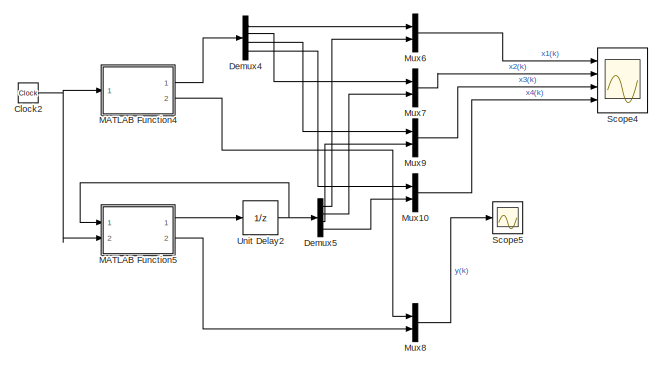
[diagram: root canvas - part 1/2, right side, full height]
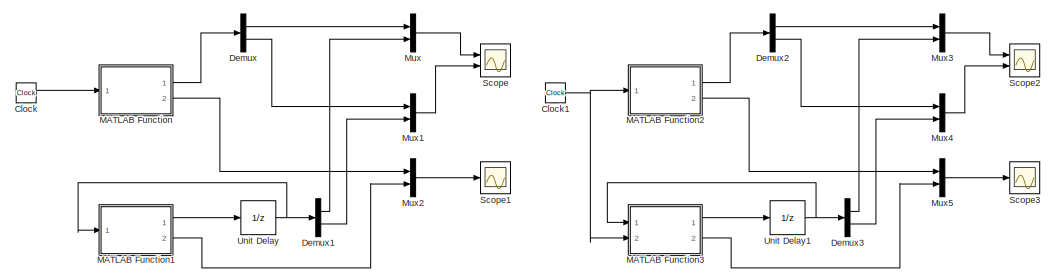
[diagram: root canvas - part 2/2, middle left region]
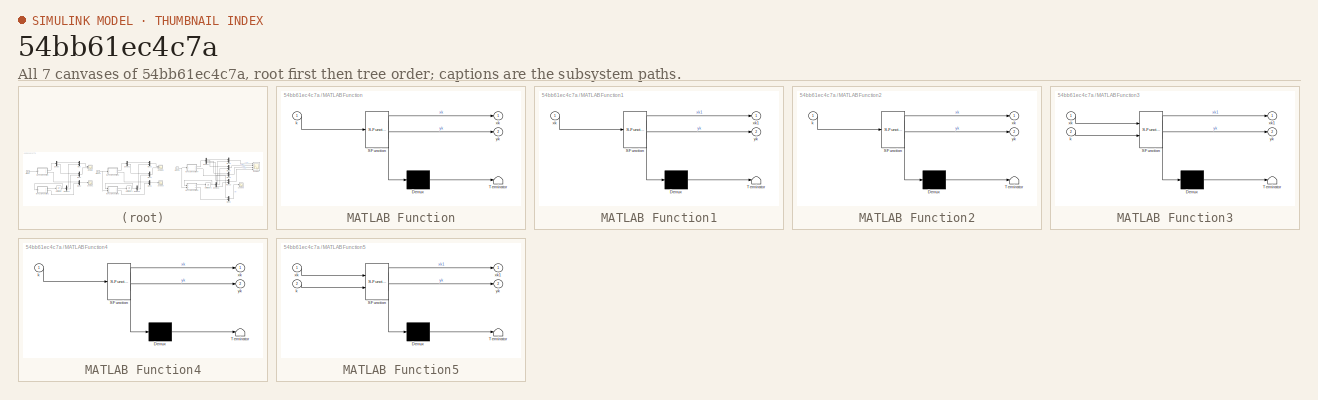
[diagram: thumbnail index - all 7 canvases of the model, root first then tree order]
MODEL slx_54bb61ec4c7a
KIND model
CONFIG AbsTol = auto
CONFIG FixedStep = 1
CONFIG MaxStep = auto
CONFIG MinStep = auto
CONFIG RelTol = 1e-3
CONFIG SampleTimeConstraint = Unconstrained
CONFIG Solver = FixedStepDiscrete
CONFIG SolverMode = Auto
CONFIG SolverName = FixedStepDiscrete
CONFIG StartTime = 0.0
CONFIG StopTime = 10.0
BLOCK [Clock] Clock
BLOCK [Clock] Clock1
BLOCK [Clock] Clock2
BLOCK [Demux] Demux
  DisplayOption = bar
  Outputs = 2
  Ports = [1, 2]
BLOCK [Demux] Demux1
  DisplayOption = bar
  Outputs = 2
  Ports = [1, 2]
BLOCK [Demux] Demux2
  DisplayOption = bar
  Outputs = 2
  Ports = [1, 2]
BLOCK [Demux] Demux3
  DisplayOption = bar
  Outputs = 2
  Ports = [1, 2]
BLOCK [Demux] Demux4
  DisplayOption = bar
  Ports = [1, 4]
BLOCK [Demux] Demux5
  DisplayOption = bar
  Ports = [1, 4]
BLOCK [SubSystem] MATLAB Function
  ErrorFcn = Stateflow.Translate.translate
  PermitHierarchicalResolution = ExplicitOnly
  Ports = [1, 2]
  RequestExecContextInheritance = off
  SFBlockType = MATLAB Function
  TreatAsAtomicUnit = on
BLOCK [Demux] MATLAB Function/ Demux 
  Outputs = 1
  Ports = [1, 1]
BLOCK [S-Function] MATLAB Function/ SFunction 
  EnableBusSupport = on
  FunctionName = sf_sfun
  PortCounts = [1 3]
  Ports = [1, 3]
  Tag = Stateflow S-Function untitled 2
BLOCK [Terminator] MATLAB Function/ Terminator 
BLOCK [Inport] MATLAB Function/k
  IconDisplay = Port number
BLOCK [Outport] MATLAB Function/xk
  IconDisplay = Port number
BLOCK [Outport] MATLAB Function/yk
  IconDisplay = Port number
  Port = 2
BLOCK [SubSystem] MATLAB Function1
  ErrorFcn = Stateflow.Translate.translate
  PermitHierarchicalResolution = ExplicitOnly
  Ports = [1, 2]
  RequestExecContextInheritance = off
  SFBlockType = MATLAB Function
  TreatAsAtomicUnit = on
BLOCK [Demux] MATLAB Function1/ Demux 
  Outputs = 1
  Ports = [1, 1]
BLOCK [S-Function] MATLAB Function1/ SFunction 
  EnableBusSupport = on
  FunctionName = sf_sfun
  PortCounts = [1 3]
  Ports = [1, 3]
  Tag = Stateflow S-Function untitled 1
BLOCK [Terminator] MATLAB Function1/ Terminator 
BLOCK [Inport] MATLAB Function1/xk
  IconDisplay = Port number
BLOCK [Outport] MATLAB Function1/xk1
  IconDisplay = Port number
BLOCK [Outport] MATLAB Function1/yk
  IconDisplay = Port number
  Port = 2
BLOCK [SubSystem] MATLAB Function2
  ErrorFcn = Stateflow.Translate.translate
  PermitHierarchicalResolution = ExplicitOnly
  Ports = [1, 2]
  RequestExecContextInheritance = off
  SFBlockType = MATLAB Function
  TreatAsAtomicUnit = on
BLOCK [Demux] MATLAB Function2/ Demux 
  Outputs = 1
  Ports = [1, 1]
BLOCK [S-Function] MATLAB Function2/ SFunction 
  EnableBusSupport = on
  FunctionName = sf_sfun
  PortCounts = [1 3]
  Ports = [1, 3]
  Tag = Stateflow S-Function untitled 3
BLOCK [Terminator] MATLAB Function2/ Terminator 
BLOCK [Inport] MATLAB Function2/k
  IconDisplay = Port number
BLOCK [Outport] MATLAB Function2/xk
  IconDisplay = Port number
BLOCK [Outport] MATLAB Function2/yk
  IconDisplay = Port number
  Port = 2
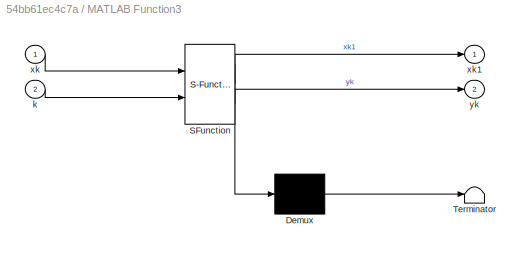
BLOCK [SubSystem] MATLAB Function3
  ErrorFcn = Stateflow.Translate.translate
  PermitHierarchicalResolution = ExplicitOnly
  Ports = [2, 2]
  RequestExecContextInheritance = off
  SFBlockType = MATLAB Function
  TreatAsAtomicUnit = on
BLOCK [Demux] MATLAB Function3/ Demux 
  Outputs = 1
  Ports = [1, 1]
BLOCK [S-Function] MATLAB Function3/ SFunction 
  EnableBusSupport = on
  FunctionName = sf_sfun
  PortCounts = [2 3]
  Ports = [2, 3]
  Tag = Stateflow S-Function untitled 4
BLOCK [Terminator] MATLAB Function3/ Terminator 
BLOCK [Inport] MATLAB Function3/k
  IconDisplay = Port number
  Port = 2
BLOCK [Inport] MATLAB Function3/xk
  IconDisplay = Port number
BLOCK [Outport] MATLAB Function3/xk1
  IconDisplay = Port number
BLOCK [Outport] MATLAB Function3/yk
  IconDisplay = Port number
  Port = 2
BLOCK [SubSystem] MATLAB Function4
  ErrorFcn = Stateflow.Translate.translate
  PermitHierarchicalResolution = ExplicitOnly
  Ports = [1, 2]
  RequestExecContextInheritance = off
  SFBlockType = MATLAB Function
  TreatAsAtomicUnit = on
BLOCK [Demux] MATLAB Function4/ Demux 
  Outputs = 1
  Ports = [1, 1]
BLOCK [S-Function] MATLAB Function4/ SFunction 
  EnableBusSupport = on
  FunctionName = sf_sfun
  PortCounts = [1 3]
  Ports = [1, 3]
  Tag = Stateflow S-Function untitled 5
BLOCK [Terminator] MATLAB Function4/ Terminator 
BLOCK [Inport] MATLAB Function4/k
  IconDisplay = Port number
BLOCK [Outport] MATLAB Function4/xk
  IconDisplay = Port number
BLOCK [Outport] MATLAB Function4/yk
  IconDisplay = Port number
  Port = 2
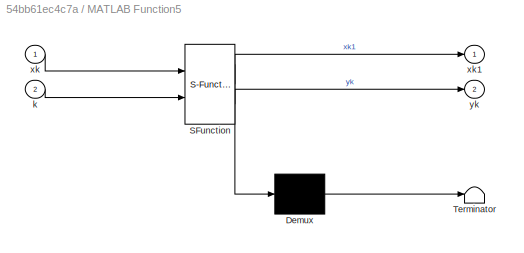
BLOCK [SubSystem] MATLAB Function5
  ErrorFcn = Stateflow.Translate.translate
  PermitHierarchicalResolution = ExplicitOnly
  Ports = [2, 2]
  RequestExecContextInheritance = off
  SFBlockType = MATLAB Function
  TreatAsAtomicUnit = on
BLOCK [Demux] MATLAB Function5/ Demux 
  Outputs = 1
  Ports = [1, 1]
BLOCK [S-Function] MATLAB Function5/ SFunction 
  EnableBusSupport = on
  FunctionName = sf_sfun
  PortCounts = [2 3]
  Ports = [2, 3]
  Tag = Stateflow S-Function untitled 6
BLOCK [Terminator] MATLAB Function5/ Terminator 
BLOCK [Inport] MATLAB Function5/k
  IconDisplay = Port number
  Port = 2
BLOCK [Inport] MATLAB Function5/xk
  IconDisplay = Port number
BLOCK [Outport] MATLAB Function5/xk1
  IconDisplay = Port number
BLOCK [Outport] MATLAB Function5/yk
  IconDisplay = Port number
  Port = 2
BLOCK [Mux] Mux
  DisplayOption = bar
  Inputs = 2
  Ports = [2, 1]
BLOCK [Mux] Mux1
  DisplayOption = bar
  Inputs = 2
  Ports = [2, 1]
BLOCK [Mux] Mux10
  DisplayOption = bar
  Inputs = 2
  Ports = [2, 1]
BLOCK [Mux] Mux2
  DisplayOption = bar
  Inputs = 2
  Ports = [2, 1]
BLOCK [Mux] Mux3
  DisplayOption = bar
  Inputs = 2
  Ports = [2, 1]
BLOCK [Mux] Mux4
  DisplayOption = bar
  Inputs = 2
  Ports = [2, 1]
BLOCK [Mux] Mux5
  DisplayOption = bar
  Inputs = 2
  Ports = [2, 1]
BLOCK [Mux] Mux6
  DisplayOption = bar
  Inputs = 2
  Ports = [2, 1]
BLOCK [Mux] Mux7
  DisplayOption = bar
  Inputs = 2
  Ports = [2, 1]
BLOCK [Mux] Mux8
  DisplayOption = bar
  Inputs = 2
  Ports = [2, 1]
BLOCK [Mux] Mux9
  DisplayOption = bar
  Inputs = 2
  Ports = [2, 1]
BLOCK [Scope] Scope
  Floating = off
  LimitDataPoints = off
  NumInputPorts = 2
  Ports = [2]
  YMax = 5~5
  YMin = -5~-5
BLOCK [Scope] Scope1
  Floating = off
  NumInputPorts = 1
  Ports = [1]
  SaveName = ScopeData1
BLOCK [Scope] Scope2
  Floating = off
  LimitDataPoints = off
  NumInputPorts = 2
  Ports = [2]
  SaveName = ScopeData2
  YMax = 5~5
  YMin = -5~-5
BLOCK [Scope] Scope3
  Floating = off
  NumInputPorts = 1
  Ports = [1]
  SaveName = ScopeData3
BLOCK [Scope] Scope4
  Floating = off
  LimitDataPoints = off
  NumInputPorts = 4
  Ports = [4]
  SaveName = ScopeData4
  YMax = 5~5~5~5
  YMin = -5~-5~-5~-5
BLOCK [Scope] Scope5
  Floating = off
  NumInputPorts = 1
  Ports = [1]
  SaveName = ScopeData5
BLOCK [UnitDelay] Unit Delay
  InitialCondition = [2 -2]
  InputProcessing = Elements as channels (sample based)
  SampleTime = -1
BLOCK [UnitDelay] Unit Delay1
  InitialCondition = [2 -2]
  InputProcessing = Elements as channels (sample based)
  SampleTime = -1
BLOCK [UnitDelay] Unit Delay2
  InitialCondition = [-1 1 -2 2]
  InputProcessing = Elements as channels (sample based)
  SampleTime = -1
NET Clock1:1 -> MATLAB Function2:1, MATLAB Function3:2
NET Clock2:1 -> MATLAB Function4:1, MATLAB Function5:2
LINE Clock:1 -> MATLAB Function:1
LINE Demux1:1 -> Mux:2
LINE Demux1:2 -> Mux1:2
LINE Demux2:1 -> Mux3:1
LINE Demux2:2 -> Mux4:1
LINE Demux3:1 -> Mux3:2
LINE Demux3:2 -> Mux4:2
LINE Demux4:1 -> Mux6:1
LINE Demux4:2 -> Mux7:1
LINE Demux4:3 -> Mux9:1
LINE Demux4:4 -> Mux10:1
LINE Demux5:1 -> Mux6:2
LINE Demux5:2 -> Mux7:2
LINE Demux5:3 -> Mux9:2
LINE Demux5:4 -> Mux10:2
LINE Demux:1 -> Mux:1
LINE Demux:2 -> Mux1:1
LINE MATLAB Function1:1 -> Unit Delay:1
LINE MATLAB Function1:2 -> Mux2:2
LINE MATLAB Function2:1 -> Demux2:1
LINE MATLAB Function2:2 -> Mux5:1
LINE MATLAB Function3:1 -> Unit Delay1:1
LINE MATLAB Function3:2 -> Mux5:2
LINE MATLAB Function4:1 -> Demux4:1
LINE MATLAB Function4:2 -> Mux8:1
LINE MATLAB Function5:1 -> Unit Delay2:1
LINE MATLAB Function5:2 -> Mux8:2
LINE MATLAB Function:1 -> Demux:1
LINE MATLAB Function:2 -> Mux2:1
LINE Mux10:1 -> Scope4:4
LINE Mux1:1 -> Scope:2
LINE Mux2:1 -> Scope1:1
LINE Mux3:1 -> Scope2:1
LINE Mux4:1 -> Scope2:2
LINE Mux5:1 -> Scope3:1
LINE Mux6:1 -> Scope4:1
LINE Mux7:1 -> Scope4:2
LINE Mux8:1 -> Scope5:1
LINE Mux9:1 -> Scope4:3
LINE Mux:1 -> Scope:1
NET Unit Delay1:1 -> Demux3:1, MATLAB Function3:1
NET Unit Delay2:1 -> Demux5:1, MATLAB Function5:1
NET Unit Delay:1 -> Demux1:1, MATLAB Function1:1
note: NET lines group one-source signal fan-out (src -> all destinations, sorted); 1:1 wires keep LINE
CHART MATLAB Function1 states=1 transitions=1
  STATE_LABEL 'eML_blk_kernel()'
  STATE_LABEL 'SCRIPT:\nfunction [xk1,yk] = fcn(xk)\n%#codegen\nA=[2 .5;0 .8];\nB=[-5;2];\nC=[1 -1];\nu=1;\nxk1=A*xk+B*u;\nyk=C*xk;\n'
CHART MATLAB Function states=1 transitions=1
  STATE_LABEL 'eML_blk_kernel()'
  STATE_LABEL 'SCRIPT:\nfunction [xk,yk] = fcn(k)\n%#codegen\n xk=[5*(4/5)^k - 3*2^k;10 - 12*(4/5)^k];\n yk=17*(4/5)^k - 3*2^k - 10;\n'
CHART MATLAB Function2 states=1 transitions=1
  STATE_LABEL 'eML_blk_kernel()'
  STATE_LABEL 'SCRIPT:\nfunction [xk,yk] = fcn(k)\n%#codegen\n xk=[ 5*k - 3*2^k + 5*(4/5)^k;10 - 12*(4/5)^k];\n yk=5*k - 3*2^k + 17*(4/5)^k - 10;\n'
CHART MATLAB Function3 states=1 transitions=1
  STATE_LABEL 'eML_blk_kernel()'
  STATE_LABEL 'SCRIPT:\nfunction [xk1,yk] = fcn(xk,k)\n%#codegen\nA=[2 .5;0 .8];\nB=[0,-5;2,0];\nC=[1 -1];\nu=[1;k];\nxk1=A*xk+B*u;\nyk=C*xk;\n'
CHART MATLAB Function4 states=1 transitions=1
  STATE_LABEL 'eML_blk_kernel()'
  STATE_LABEL 'SCRIPT:\nfunction [xk,yk] = fcn(k)\n%#codegen\n xk=[-(233*(-2)^k)/144-2^k/16-(19*(-2)^k*(k-1))/24-1/9;(19*(-2)^k)/12 - 2^k/4 - 1/3 ;- 2^k - 1;(7*(-3)^k)/4 + 1/4];\n yk=(7*(-3)^k)/4 - 2^k - 3/4;\n'
CHART MATLAB Function5 states=1 transitions=1
  STATE_LABEL 'eML_blk_kernel()'
  STATE_LABEL "SCRIPT:\nfunction [xk1,yk] = fcn(xk,k)\n%#codegen\nA=[-2 1 0 0;0 -2 1 0;0 0 2 0;0 0 0 -3];\nB=[0 0 1 1]';\nC=[0 0 1 1];\nu=1;\nxk1=A*xk+B*u;\nyk=C*xk;\n"
